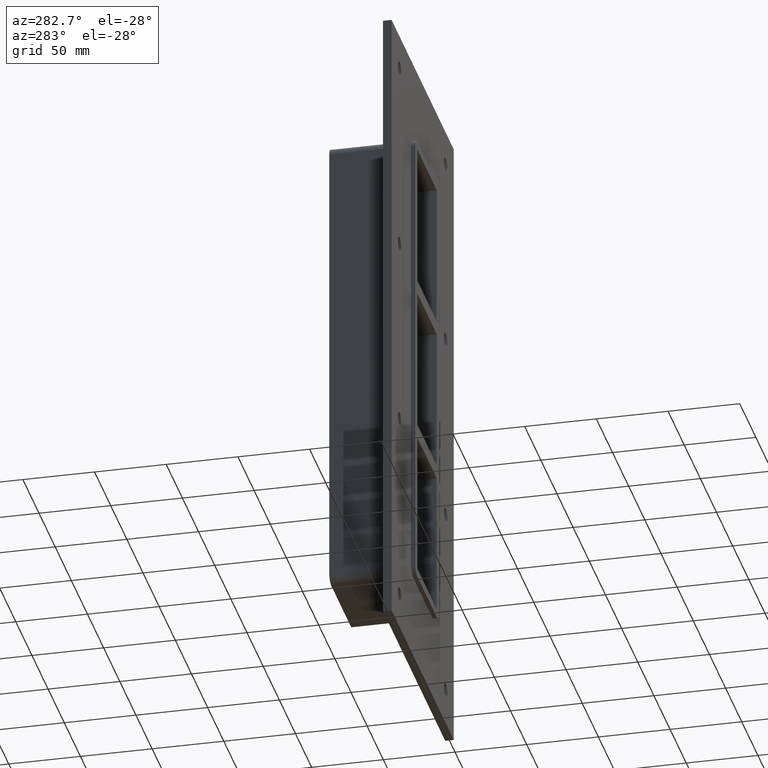
[diagram: clean part render]
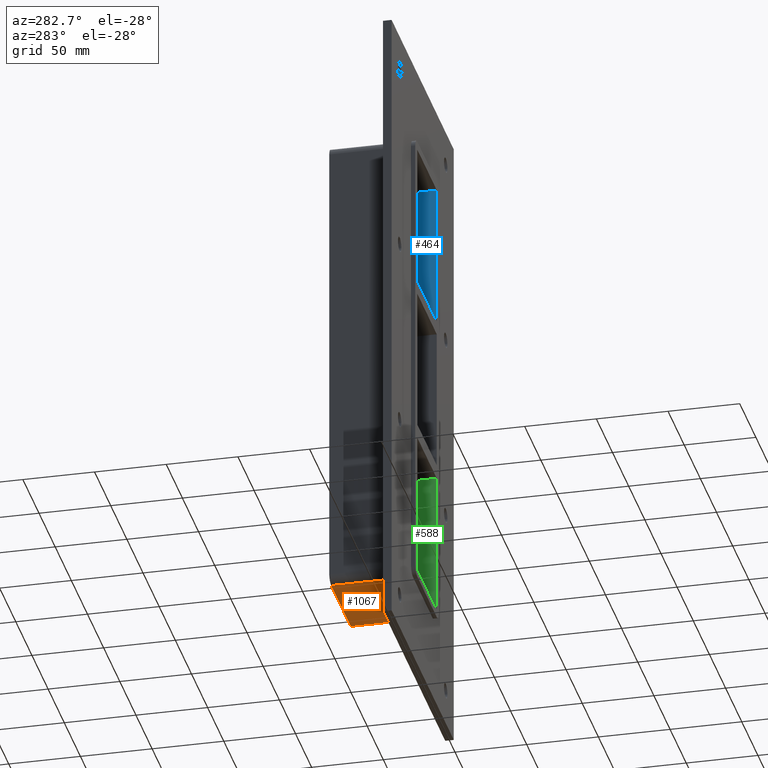
[diagram: same view with three faces highlighted in distinct colors, each labeled with its STEP entity id]
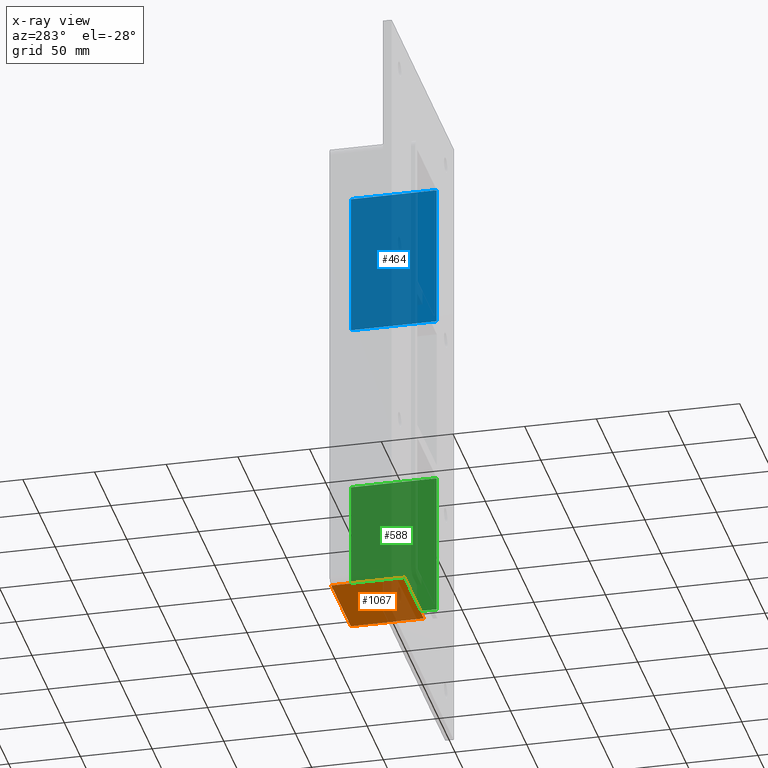
[diagram: x-ray of the same camera — body ghosted, the three highlighted faces saturated]
A machine part, auxiliary view with three faces highlighted in distinct colors.
The next image is the same camera in x-ray (body ghosted, the three faces saturated) — at least one of them is partly hidden behind the body in this view.
Their STEP definitions:

[orange] entity #1067 — the highlighted planar face has unit normal (0, 0, -1).
#671=CARTESIAN_POINT('',(-30.250000000000004,6.000000000000001,-167.5));
#672=VERTEX_POINT('',#671);
#680=CARTESIAN_POINT('',(30.250000000000004,6.000000000000001,-167.5));
#681=VERTEX_POINT('',#680);
#682=CARTESIAN_POINT('',(30.250000000000004,6.000000000000001,-167.5));
#683=DIRECTION('',(-1.0,0.0,0.0));
#684=VECTOR('',#683,60.5);
#685=LINE('',#682,#684);
#686=EDGE_CURVE('',#681,#672,#685,.T.);
#994=CARTESIAN_POINT('',(30.250000000000004,57.0,-167.5));
#995=VERTEX_POINT('',#994);
#996=CARTESIAN_POINT('',(30.250000000000004,6.000000000000001,-167.5));
#997=DIRECTION('',(0.0,1.0,0.0));
#998=VECTOR('',#997,51.0);
#999=LINE('',#996,#998);
#1000=EDGE_CURVE('',#681,#995,#999,.T.);
#1044=CARTESIAN_POINT('',(36.25,0.0,-167.5));
#1045=DIRECTION('',(0.0,0.0,-1.0));
#1046=DIRECTION('',(-1.0,0.0,0.0));
#1047=AXIS2_PLACEMENT_3D('',#1044,#1045,#1046);
#1048=PLANE('',#1047);
#1049=ORIENTED_EDGE('',*,*,#686,.T.);
#1050=CARTESIAN_POINT('',(-30.250000000000004,57.0,-167.5));
#1051=VERTEX_POINT('',#1050);
#1052=CARTESIAN_POINT('',(-30.250000000000004,57.0,-167.5));
#1053=DIRECTION('',(0.0,-1.0,0.0));
#1054=VECTOR('',#1053,51.0);
#1055=LINE('',#1052,#1054);
#1056=EDGE_CURVE('',#1051,#672,#1055,.T.);
#1057=ORIENTED_EDGE('',*,*,#1056,.F.);
#1058=CARTESIAN_POINT('',(30.250000000000004,57.0,-167.5));
#1059=DIRECTION('',(-1.0,0.0,0.0));
#1060=VECTOR('',#1059,60.5);
#1061=LINE('',#1058,#1060);
#1062=EDGE_CURVE('',#995,#1051,#1061,.T.);
#1063=ORIENTED_EDGE('',*,*,#1062,.F.);
#1064=ORIENTED_EDGE('',*,*,#1000,.F.);
#1065=EDGE_LOOP('',(#1049,#1057,#1063,#1064));
#1066=FACE_OUTER_BOUND('',#1065,.T.);
#1067=ADVANCED_FACE('',(#1066),#1048,.T.);

[blue] entity #464 — the highlighted planar face has unit normal (1, 0, 0).
#339=CARTESIAN_POINT('',(30.249999999999012,-3.0,60.500000000000469));
#340=VERTEX_POINT('',#339);
#347=CARTESIAN_POINT('',(30.249999999999009,57.0,60.500000000000469));
#348=VERTEX_POINT('',#347);
#349=CARTESIAN_POINT('',(30.249999999999986,57.000000000000007,60.500000000000469));
#350=DIRECTION('',(0.0,-1.0,0.0));
#351=VECTOR('',#350,60.000000000000007);
#352=LINE('',#349,#351);
#353=EDGE_CURVE('',#348,#340,#352,.T.);
#434=CARTESIAN_POINT('',(30.249999999999986,0.0,161.5));
#435=DIRECTION('',(1.0,0.0,0.0));
#436=DIRECTION('',(0.0,0.0,-1.0));
#437=AXIS2_PLACEMENT_3D('',#434,#435,#436);
#438=PLANE('',#437);
#439=ORIENTED_EDGE('',*,*,#353,.T.);
#440=CARTESIAN_POINT('',(30.249999999999986,-3.0,161.5));
#441=VERTEX_POINT('',#440);
#442=CARTESIAN_POINT('',(30.249999999999986,-3.0,161.5));
#443=DIRECTION('',(0.0,0.0,-1.0));
#444=VECTOR('',#443,100.99999999999952);
#445=LINE('',#442,#444);
#446=EDGE_CURVE('',#441,#340,#445,.T.);
#447=ORIENTED_EDGE('',*,*,#446,.F.);
#448=CARTESIAN_POINT('',(30.249999999999986,57.0,161.5));
#449=VERTEX_POINT('',#448);
#450=CARTESIAN_POINT('',(30.249999999999986,-3.0,161.5));
#451=DIRECTION('',(0.0,1.0,0.0));
#452=VECTOR('',#451,60.0);
#453=LINE('',#450,#452);
#454=EDGE_CURVE('',#441,#449,#453,.T.);
#455=ORIENTED_EDGE('',*,*,#454,.T.);
#456=CARTESIAN_POINT('',(30.249999999999986,57.0,60.500000000000476));
#457=DIRECTION('',(0.0,0.0,1.0));
#458=VECTOR('',#457,100.99999999999952);
#459=LINE('',#456,#458);
#460=EDGE_CURVE('',#348,#449,#459,.T.);
#461=ORIENTED_EDGE('',*,*,#460,.F.);
#462=EDGE_LOOP('',(#439,#447,#455,#461));
#463=FACE_OUTER_BOUND('',#462,.T.);
#464=ADVANCED_FACE('',(#463),#438,.F.);

[green] entity #588 — the highlighted planar face has unit normal (1, 0, 0).
#470=CARTESIAN_POINT('',(30.249999999996362,-3.0,-60.500000000010807));
#471=VERTEX_POINT('',#470);
#488=CARTESIAN_POINT('',(30.249999999996362,57.0,-60.500000000010807));
#489=VERTEX_POINT('',#488);
#496=CARTESIAN_POINT('',(30.249999999999986,-3.0,-60.500000000010807));
#497=DIRECTION('',(0.0,1.0,0.0));
#498=VECTOR('',#497,60.000000000000007);
#499=LINE('',#496,#498);
#500=EDGE_CURVE('',#471,#489,#499,.T.);
#558=CARTESIAN_POINT('',(30.249999999999986,0.0,161.5));
#559=DIRECTION('',(1.0,0.0,0.0));
#560=DIRECTION('',(0.0,0.0,-1.0));
#561=AXIS2_PLACEMENT_3D('',#558,#559,#560);
#562=PLANE('',#561);
#563=ORIENTED_EDGE('',*,*,#500,.T.);
#564=CARTESIAN_POINT('',(30.249999999999986,57.0,-161.5));
#565=VERTEX_POINT('',#564);
#566=CARTESIAN_POINT('',(30.249999999999986,57.0,-161.49999999999997));
#567=DIRECTION('',(0.0,0.0,1.0));
#568=VECTOR('',#567,100.99999999998917);
#569=LINE('',#566,#568);
#570=EDGE_CURVE('',#565,#489,#569,.T.);
#571=ORIENTED_EDGE('',*,*,#570,.F.);
#572=CARTESIAN_POINT('',(30.249999999999986,-3.0,-161.5));
#573=VERTEX_POINT('',#572);
#574=CARTESIAN_POINT('',(30.249999999999986,56.999999999999993,-161.5));
#575=DIRECTION('',(0.0,-1.0,0.0));
#576=VECTOR('',#575,59.999999999999993);
#577=LINE('',#574,#576);
#578=EDGE_CURVE('',#565,#573,#577,.T.);
#579=ORIENTED_EDGE('',*,*,#578,.T.);
#580=CARTESIAN_POINT('',(30.249999999999986,-3.0,-60.5000000000108));
#581=DIRECTION('',(0.0,0.0,-1.0));
#582=VECTOR('',#581,100.99999999998917);
#583=LINE('',#580,#582);
#584=EDGE_CURVE('',#471,#573,#583,.T.);
#585=ORIENTED_EDGE('',*,*,#584,.F.);
#586=EDGE_LOOP('',(#563,#571,#579,#585));
#587=FACE_OUTER_BOUND('',#586,.T.);
#588=ADVANCED_FACE('',(#587),#562,.F.);